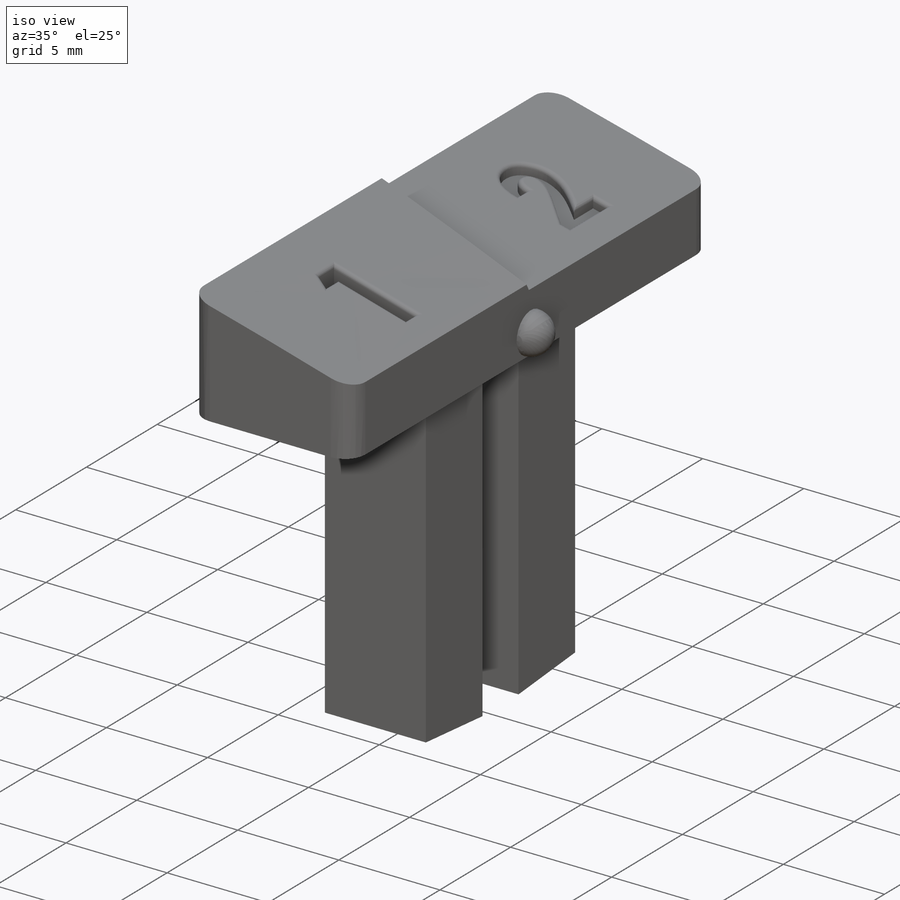
[diagram: iso view]
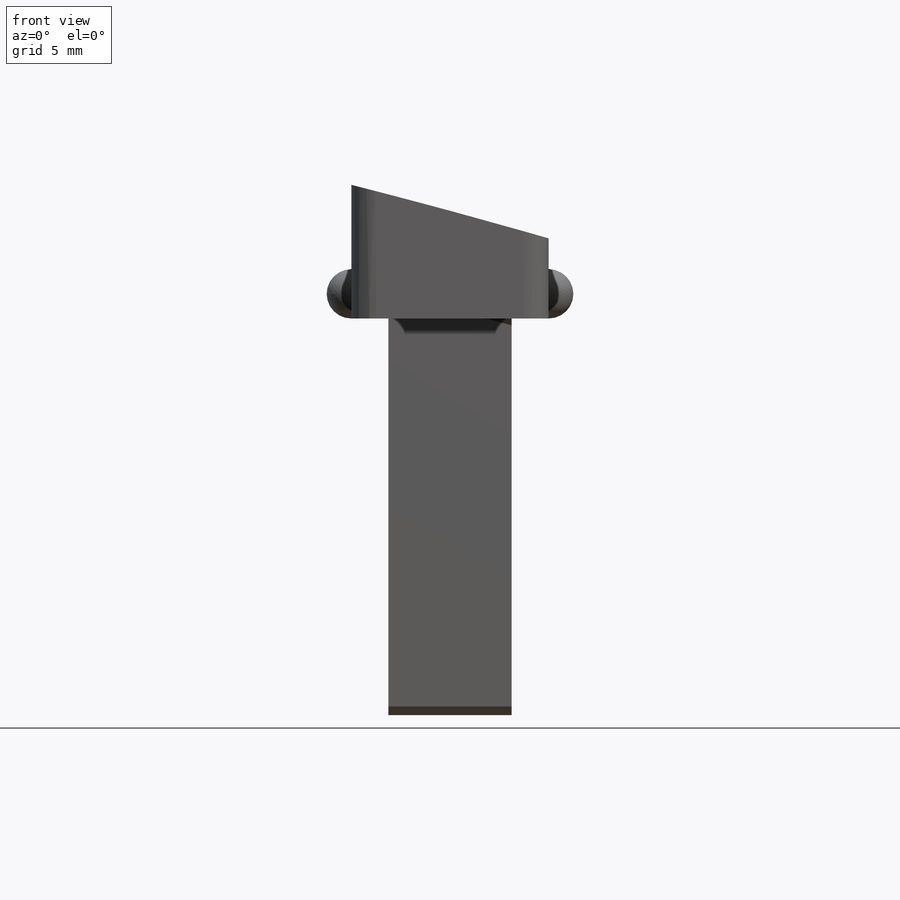
[diagram: front view]
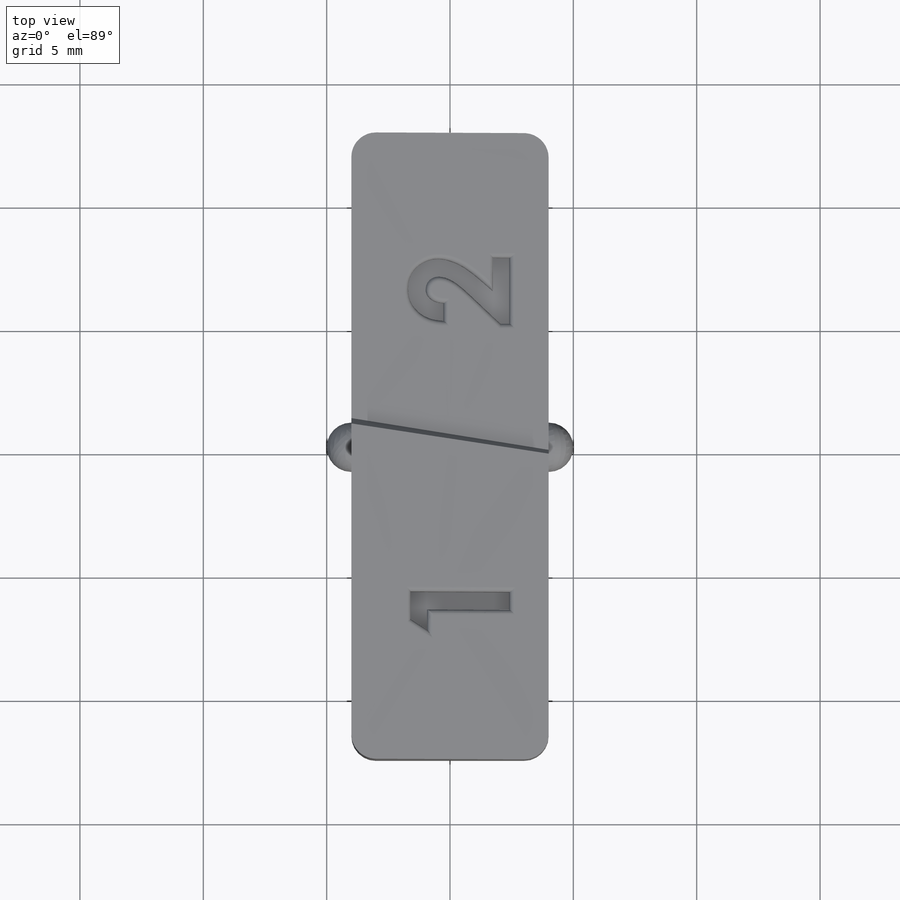
[diagram: top view]
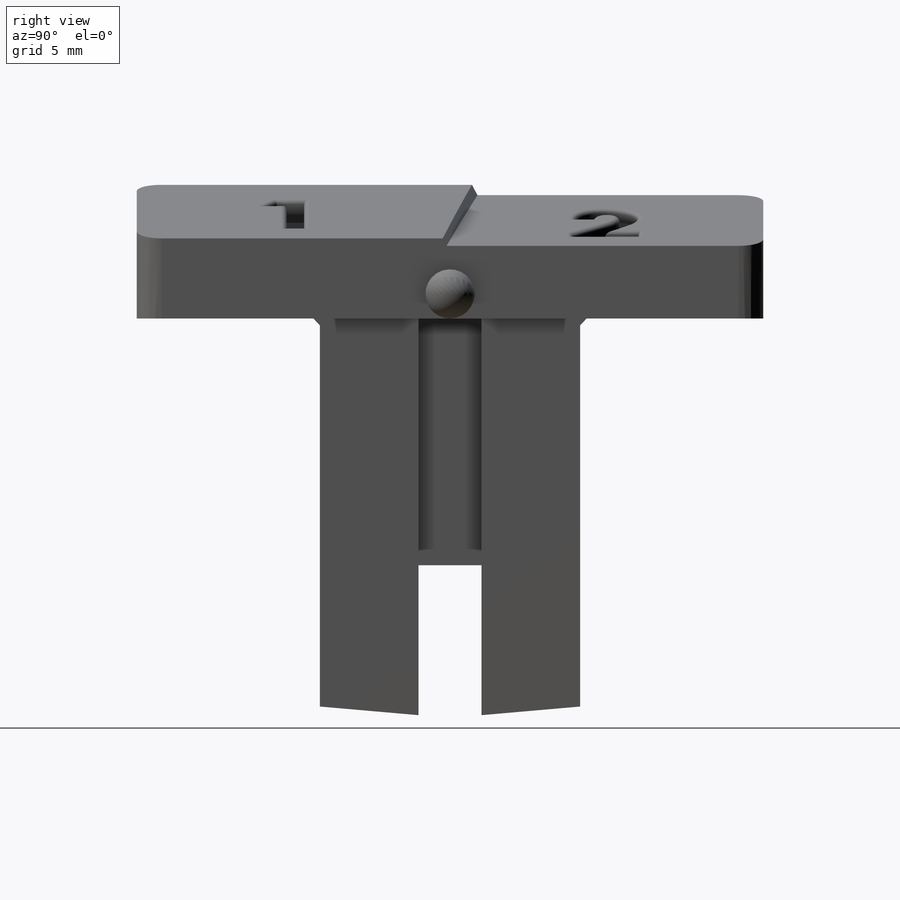
[diagram: right view]
SOLIDWORKS PART (.sldprt)
format: sldprt  version: not decoded by parser v0  size: 546,816 bytes
history: native  units: mm
features: sketch x13, extrude x6, fillet x5, cut_extrude x4, plane x3, chamfer x2, material x1, shell x1 (+16 scaffold rows collapsed)
feature tree (51):
  scaffold x16  (default folders/planes/origin — collapsed)
  material  "1080 Polyurethane"
  sketch  "Sketch1"  dims[D1=25.4mm D2=8.0mm]
  extrude  "Boss-Extrude1"  Depth=5mm
  fillet  "Fillet1"  Radius=1mm
  sketch  "Sketch2"  dims[D1=12.752mm D2=12.7mm D3=~99.05571mm D4=83.0mm D5=24.0mm]
  sketch  "Sketch3"
  cut_extrude  "Cut-Extrude1"  Depth=25.4mm
  shell  "Shell1"  Thickness=1.5mm
  sketch  "Sketch4"  dims[c1.D3=266.0mm c1.D4=10.25mm c1.D1=~22.299855mm c2.D1=1.0deg c2.D2=~12.679347mm c3.D2=1.0deg]
  sketch  "Sketch5"
  extrude  "Boss-Extrude2"  Depth=25.4mm
  plane  "Plane1"  Offset=6mm
  sketch  "Sketch6"  dims[c1.D1=8.0mm c2.D1=81.5deg c2.D2=14.6052mm]
  cut_extrude  "Cut-Extrude2"  [1 undecoded]
  fillet  "Fillet2"  Radius=1mm
  chamfer  "Chamfer1"  Distance=1mm Angle=60deg
  plane  "Plane2"
  sketch  "Sketch7"  dims[D1=6.4mm]
  plane  "Plane5"  Offset=0.5mm
  cut_extrude  "Cut-Extrude3"  [1 undecoded]
  sketch  "Sketch8"  dims[c1.D1=5.0mm c1.D2=5.0mm c1.D4=5.0mm c1.D3=3.275mm c2.D4=3.275mm c2.D5=4.0mm c2.D6=4.0mm]
  extrude  "Boss-Extrude3"  Depth=16.08mm
  sketch  "Sketch9"  dims[D1=2.0mm]
  extrude  "Boss-Extrude4"  Depth=1mm
  fillet  "Fillet3"  Radius=1mm
  chamfer  "Chamfer2"  Distance=2mm Angle=45deg
  sketch  "Sketch11"
  extrude  "Boss-Extrude5"  Depth=1mm
  fillet  "Fillet4"  Radius=1mm
  fillet  "Fillet5"  Radius=0.2mm
  sketch  "Sketch12"  dims[c1.D1=4.0mm c2.D1=5.0deg]
  cut_extrude  "Cut-Extrude4"  [1 undecoded]
  sketch  "Sketch14"  dims[D1=1.5mm]
  extrude  "Boss-Extrude6"  Depth=10mm
  sketch  "Sketch15"  dims[D1=0.0mm]
decode coverage: 25 of 31 modeling features carry decoded parameters
note: ~ marks probable driven/reference dimensions
note: 3 parameter values undecoded
summary: no parameter record found for 3 features
note: suppression state not decoded; provenance and decode notes live in map.json
